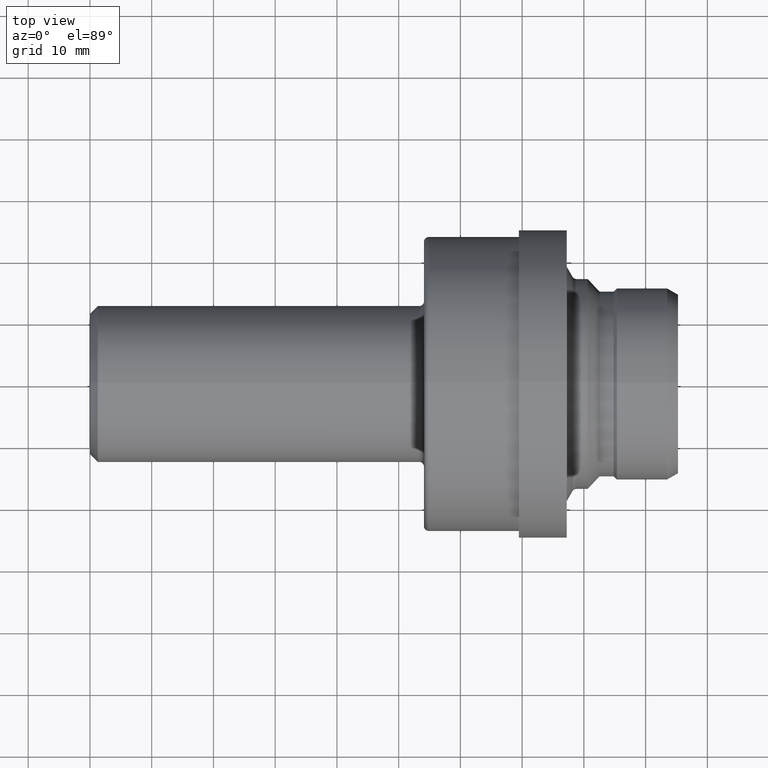
[diagram: clean part render]
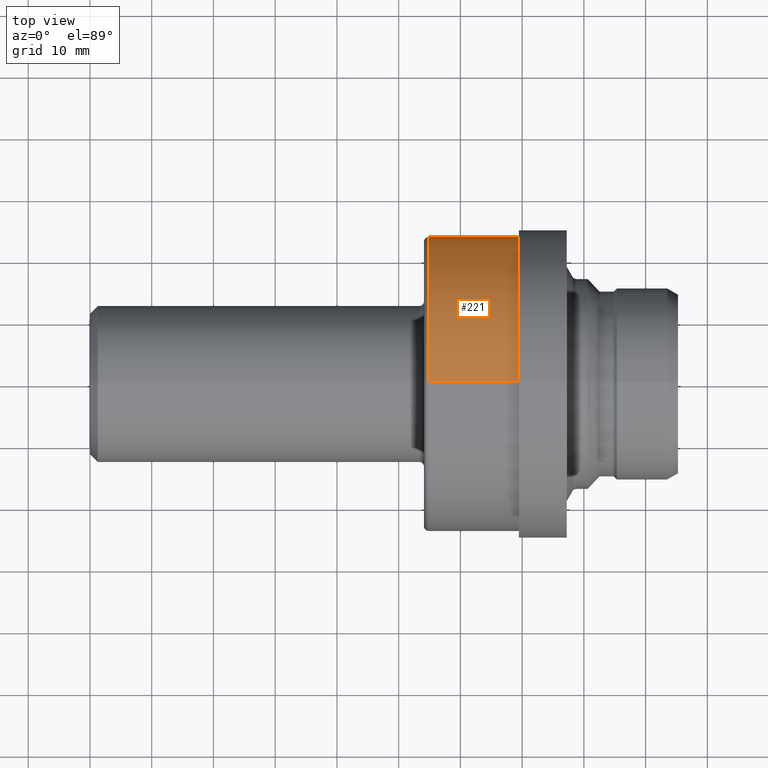
[diagram: same view with one face highlighted and labeled with its STEP entity id]
A machine part, top view. The second image highlights one B-rep face of the part: STEP entity #221.
In plain terms, the highlighted cylindrical surface (partial cylindrical patch) has radius 23.8125 mm, axis along (-1, -0, -0).
Its self-contained STEP definition (entity closure, byte-faithful):
#2 = DIRECTION ( 'NONE',  ( 0.0000000000000000000, 0.0000000000000000000, 1.000000000000000000 ) ) ;
#7 = CARTESIAN_POINT ( 'NONE',  ( 0.0000000000000000000, 0.0000000000000000000, 0.0000000000000000000 ) ) ;
#18 = VERTEX_POINT ( 'NONE', #114 ) ;
#26 = VECTOR ( 'NONE', #365, 39.37007874015748143 ) ;
#28 = CARTESIAN_POINT ( 'NONE',  ( 2.735000000000000320, 0.0000000000000000000, 0.0000000000000000000 ) ) ;
#81 = ORIENTED_EDGE ( 'NONE', *, *, #540, .F. ) ;
#92 = DIRECTION ( 'NONE',  ( -1.000000000000000000, -0.0000000000000000000, -0.0000000000000000000 ) ) ;
#106 = DIRECTION ( 'NONE',  ( 0.0000000000000000000, 0.0000000000000000000, 1.000000000000000000 ) ) ;
#111 = CIRCLE ( 'NONE', #254, 0.9375000000000000000 ) ;
#114 = CARTESIAN_POINT ( 'NONE',  ( 2.159999999999999698, 0.0000000000000000000, 0.9375000000000000000 ) ) ;
#122 = ORIENTED_EDGE ( 'NONE', *, *, #322, .T. ) ;
#129 = CYLINDRICAL_SURFACE ( 'NONE', #807, 0.9375000000000000000 ) ;
#206 = LINE ( 'NONE', #803, #26 ) ;
#221 = ADVANCED_FACE ( 'NONE', ( #245 ), #129, .T. ) ;
#229 = CIRCLE ( 'NONE', #317, 0.9375000000000000000 ) ;
#245 = FACE_OUTER_BOUND ( 'NONE', #645, .T. ) ;
#248 = VERTEX_POINT ( 'NONE', #356 ) ;
#254 = AXIS2_PLACEMENT_3D ( 'NONE', #28, #92, #106 ) ;
#301 = CARTESIAN_POINT ( 'NONE',  ( 0.0000000000000000000, 1.148106374200643740E-16, -0.9375000000000000000 ) ) ;
#305 = DIRECTION ( 'NONE',  ( -1.000000000000000000, -0.0000000000000000000, -0.0000000000000000000 ) ) ;
#317 = AXIS2_PLACEMENT_3D ( 'NONE', #590, #581, #432 ) ;
#318 = ORIENTED_EDGE ( 'NONE', *, *, #514, .F. ) ;
#322 = EDGE_CURVE ( 'NONE', #248, #820, #111, .T. ) ;
#353 = VERTEX_POINT ( 'NONE', #511 ) ;
#356 = CARTESIAN_POINT ( 'NONE',  ( 2.735000000000000320, 0.0000000000000000000, 0.9375000000000000000 ) ) ;
#365 = DIRECTION ( 'NONE',  ( -1.000000000000000000, -0.0000000000000000000, -0.0000000000000000000 ) ) ;
#414 = CARTESIAN_POINT ( 'NONE',  ( 2.735000000000000320, 1.148106374200643740E-16, -0.9375000000000000000 ) ) ;
#432 = DIRECTION ( 'NONE',  ( 0.0000000000000000000, 0.0000000000000000000, 1.000000000000000000 ) ) ;
#511 = CARTESIAN_POINT ( 'NONE',  ( 2.159999999999999698, 1.148106374200643740E-16, -0.9375000000000000000 ) ) ;
#514 = EDGE_CURVE ( 'NONE', #18, #353, #229, .T. ) ;
#540 = EDGE_CURVE ( 'NONE', #248, #18, #206, .T. ) ;
#581 = DIRECTION ( 'NONE',  ( -1.000000000000000000, -0.0000000000000000000, -0.0000000000000000000 ) ) ;
#590 = CARTESIAN_POINT ( 'NONE',  ( 2.159999999999999698, 0.0000000000000000000, 0.0000000000000000000 ) ) ;
#611 = ORIENTED_EDGE ( 'NONE', *, *, #686, .T. ) ;
#616 = VECTOR ( 'NONE', #305, 39.37007874015748143 ) ;
#642 = DIRECTION ( 'NONE',  ( -1.000000000000000000, -0.0000000000000000000, -0.0000000000000000000 ) ) ;
#645 = EDGE_LOOP ( 'NONE', ( #122, #611, #318, #81 ) ) ;
#686 = EDGE_CURVE ( 'NONE', #820, #353, #797, .T. ) ;
#797 = LINE ( 'NONE', #301, #616 ) ;
#803 = CARTESIAN_POINT ( 'NONE',  ( 0.0000000000000000000, 0.0000000000000000000, 0.9375000000000000000 ) ) ;
#807 = AXIS2_PLACEMENT_3D ( 'NONE', #7, #642, #2 ) ;
#820 = VERTEX_POINT ( 'NONE', #414 ) ;